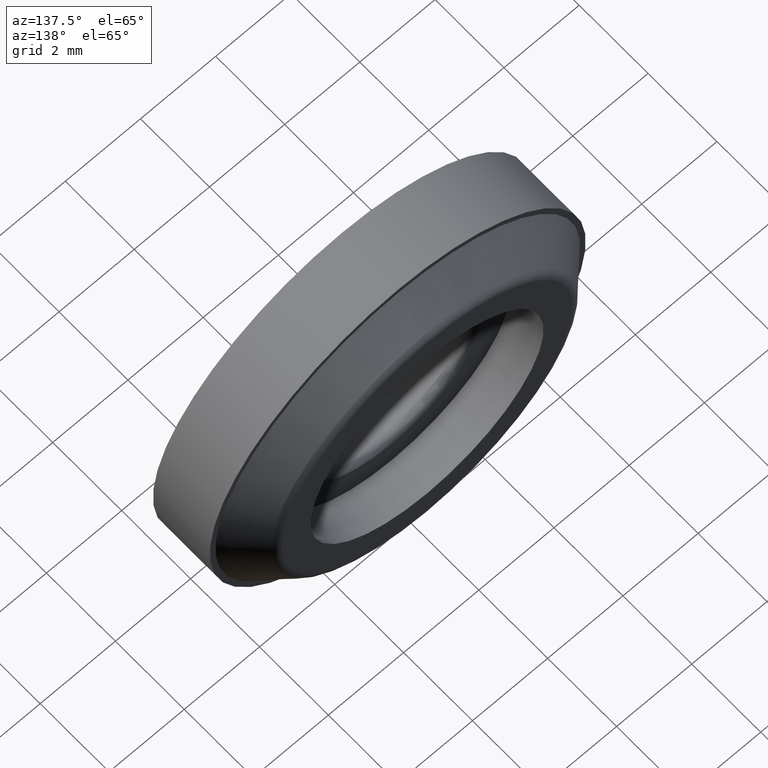
[diagram: clean part render]
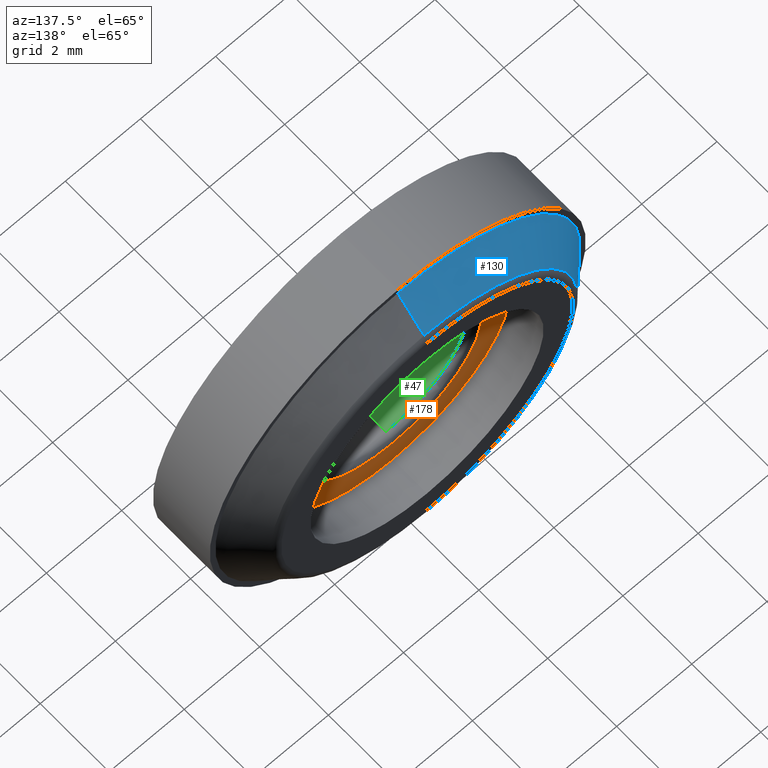
[diagram: same view with three faces highlighted in distinct colors, each labeled with its STEP entity id]
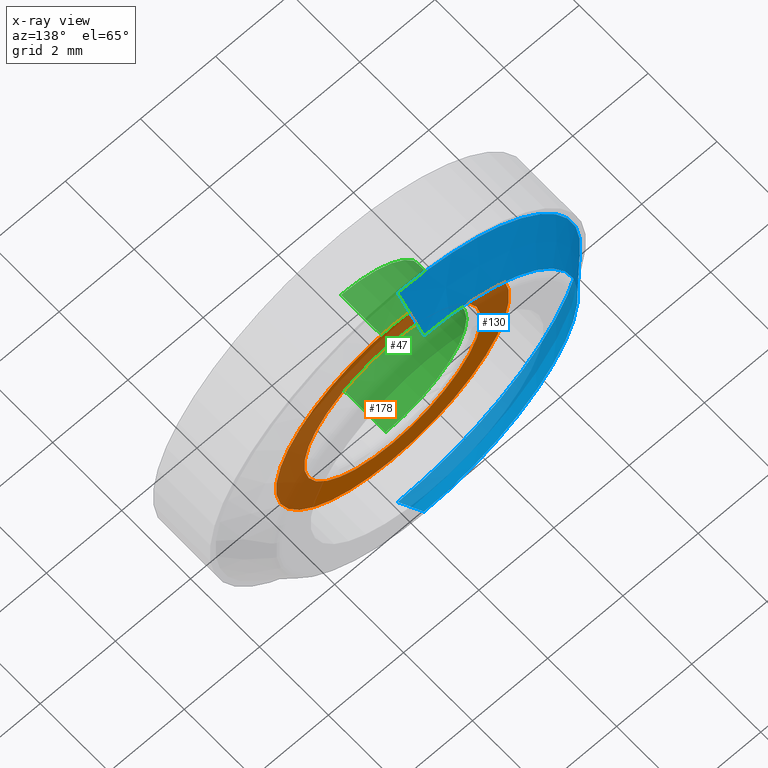
[diagram: x-ray of the same camera — body ghosted, the three highlighted faces saturated]
A machine part, auxiliary view with three faces highlighted in distinct colors.
The next image is the same camera in x-ray (body ghosted, the three faces saturated) — at least one of them is partly hidden behind the body in this view.
Their STEP definitions:

[orange] entity #178 — the highlighted planar face has unit normal (0, 1, 0).
#2 = AXIS2_PLACEMENT_3D ( 'NONE', #338, #74, #145 ) ;
#16 = DIRECTION ( 'NONE',  ( 0.0000000000000000000, 1.000000000000000000, 0.0000000000000000000 ) ) ;
#17 = CARTESIAN_POINT ( 'NONE',  ( 3.796405077356794900E-016, 1.500000000000000000, -3.100000000000000100 ) ) ;
#30 = DIRECTION ( 'NONE',  ( -0.0000000000000000000, -1.000000000000000000, -0.0000000000000000000 ) ) ;
#56 = DIRECTION ( 'NONE',  ( 0.0000000000000000000, 0.0000000000000000000, 1.000000000000000000 ) ) ;
#61 = CARTESIAN_POINT ( 'NONE',  ( 0.0000000000000000000, 1.500000000000000000, 2.350000000000000100 ) ) ;
#68 = CARTESIAN_POINT ( 'NONE',  ( 0.0000000000000000000, 1.500000000000000000, 0.0000000000000000000 ) ) ;
#74 = DIRECTION ( 'NONE',  ( 0.0000000000000000000, 1.000000000000000000, 0.0000000000000000000 ) ) ;
#75 = EDGE_CURVE ( 'NONE', #503, #482, #312, .T. ) ;
#80 = DIRECTION ( 'NONE',  ( -0.0000000000000000000, -1.000000000000000000, -0.0000000000000000000 ) ) ;
#84 = ORIENTED_EDGE ( 'NONE', *, *, #127, .T. ) ;
#112 = DIRECTION ( 'NONE',  ( 0.0000000000000000000, 0.0000000000000000000, 1.000000000000000000 ) ) ;
#127 = EDGE_CURVE ( 'NONE', #466, #129, #235, .T. ) ;
#129 = VERTEX_POINT ( 'NONE', #370 ) ;
#138 = FACE_BOUND ( 'NONE', #444, .T. ) ;
#145 = DIRECTION ( 'NONE',  ( 0.0000000000000000000, -0.0000000000000000000, 1.000000000000000000 ) ) ;
#178 = ADVANCED_FACE ( 'NONE', ( #138, #197 ), #499, .T. ) ;
#197 = FACE_OUTER_BOUND ( 'NONE', #259, .T. ) ;
#202 = AXIS2_PLACEMENT_3D ( 'NONE', #68, #255, #461 ) ;
#203 = ORIENTED_EDGE ( 'NONE', *, *, #369, .T. ) ;
#229 = DIRECTION ( 'NONE',  ( 0.0000000000000000000, 0.0000000000000000000, 1.000000000000000000 ) ) ;
#235 = CIRCLE ( 'NONE', #304, 2.350000000000000100 ) ;
#255 = DIRECTION ( 'NONE',  ( 0.0000000000000000000, 1.000000000000000000, 0.0000000000000000000 ) ) ;
#259 = EDGE_LOOP ( 'NONE', ( #418, #203 ) ) ;
#282 = AXIS2_PLACEMENT_3D ( 'NONE', #454, #80, #56 ) ;
#304 = AXIS2_PLACEMENT_3D ( 'NONE', #310, #30, #229 ) ;
#310 = CARTESIAN_POINT ( 'NONE',  ( 0.0000000000000000000, 1.500000000000000000, 0.0000000000000000000 ) ) ;
#312 = CIRCLE ( 'NONE', #202, 3.100000000000000100 ) ;
#315 = CIRCLE ( 'NONE', #282, 2.350000000000000100 ) ;
#317 = EDGE_CURVE ( 'NONE', #129, #466, #315, .T. ) ;
#338 = CARTESIAN_POINT ( 'NONE',  ( 0.0000000000000000000, 1.500000000000000000, 0.0000000000000000000 ) ) ;
#354 = ORIENTED_EDGE ( 'NONE', *, *, #317, .T. ) ;
#356 = AXIS2_PLACEMENT_3D ( 'NONE', #365, #16, #112 ) ;
#365 = CARTESIAN_POINT ( 'NONE',  ( 0.0000000000000000000, 1.500000000000000000, 0.0000000000000000000 ) ) ;
#369 = EDGE_CURVE ( 'NONE', #482, #503, #388, .T. ) ;
#370 = CARTESIAN_POINT ( 'NONE',  ( 2.877919977996279800E-016, 1.500000000000000000, -2.350000000000000100 ) ) ;
#388 = CIRCLE ( 'NONE', #356, 3.100000000000000100 ) ;
#418 = ORIENTED_EDGE ( 'NONE', *, *, #75, .T. ) ;
#444 = EDGE_LOOP ( 'NONE', ( #84, #354 ) ) ;
#454 = CARTESIAN_POINT ( 'NONE',  ( 0.0000000000000000000, 1.500000000000000000, 0.0000000000000000000 ) ) ;
#461 = DIRECTION ( 'NONE',  ( 0.0000000000000000000, 0.0000000000000000000, 1.000000000000000000 ) ) ;
#466 = VERTEX_POINT ( 'NONE', #61 ) ;
#482 = VERTEX_POINT ( 'NONE', #17 ) ;
#497 = CARTESIAN_POINT ( 'NONE',  ( 0.0000000000000000000, 1.500000000000000000, 3.100000000000000100 ) ) ;
#499 = PLANE ( 'NONE',  #2 ) ;
#503 = VERTEX_POINT ( 'NONE', #497 ) ;

[blue] entity #130 — the highlighted conical surface has half-angle 45 deg.
#8 = CIRCLE ( 'NONE', #241, 4.087867965644037800 ) ;
#35 = CARTESIAN_POINT ( 'NONE',  ( 0.0000000000000000000, 1.649999999999999500, 0.0000000000000000000 ) ) ;
#40 = EDGE_CURVE ( 'NONE', #244, #481, #400, .T. ) ;
#91 = ORIENTED_EDGE ( 'NONE', *, *, #501, .T. ) ;
#96 = EDGE_CURVE ( 'NONE', #346, #244, #8, .T. ) ;
#121 = AXIS2_PLACEMENT_3D ( 'NONE', #254, #211, #326 ) ;
#126 = VERTEX_POINT ( 'NONE', #368 ) ;
#130 = ADVANCED_FACE ( 'NONE', ( #438 ), #415, .T. ) ;
#135 = CARTESIAN_POINT ( 'NONE',  ( 0.0000000000000000000, 2.412132034355964000, 0.0000000000000000000 ) ) ;
#150 = CARTESIAN_POINT ( 'NONE',  ( 0.0000000000000000000, 1.649999999999999500, -4.850000000000000500 ) ) ;
#154 = DIRECTION ( 'NONE',  ( 0.0000000000000000000, 0.0000000000000000000, -1.000000000000000000 ) ) ;
#155 = CIRCLE ( 'NONE', #121, 4.850000000000000500 ) ;
#167 = VECTOR ( 'NONE', #348, 999.9999999999998900 ) ;
#176 = CARTESIAN_POINT ( 'NONE',  ( 5.472865697663817900E-016, 2.412132034355964000, 4.087867965644037800 ) ) ;
#211 = DIRECTION ( 'NONE',  ( -0.0000000000000000000, 1.000000000000000000, -0.0000000000000000000 ) ) ;
#231 = ORIENTED_EDGE ( 'NONE', *, *, #40, .T. ) ;
#241 = AXIS2_PLACEMENT_3D ( 'NONE', #135, #308, #474 ) ;
#243 = VECTOR ( 'NONE', #507, 999.9999999999998900 ) ;
#244 = VERTEX_POINT ( 'NONE', #487 ) ;
#254 = CARTESIAN_POINT ( 'NONE',  ( 0.0000000000000000000, 1.649999999999999500, 0.0000000000000000000 ) ) ;
#267 = EDGE_LOOP ( 'NONE', ( #410, #352, #231, #91 ) ) ;
#308 = DIRECTION ( 'NONE',  ( 0.0000000000000000000, -1.000000000000000000, 0.0000000000000000000 ) ) ;
#322 = DIRECTION ( 'NONE',  ( 0.0000000000000000000, -1.000000000000000000, 0.0000000000000000000 ) ) ;
#324 = AXIS2_PLACEMENT_3D ( 'NONE', #35, #322, #154 ) ;
#326 = DIRECTION ( 'NONE',  ( 0.0000000000000000000, 0.0000000000000000000, 1.000000000000000000 ) ) ;
#332 = CARTESIAN_POINT ( 'NONE',  ( 5.939536975864663000E-016, 1.649999999999999500, 4.850000000000000500 ) ) ;
#346 = VERTEX_POINT ( 'NONE', #176 ) ;
#348 = DIRECTION ( 'NONE',  ( 0.0000000000000000000, -0.7071067811865489100, -0.7071067811865462400 ) ) ;
#352 = ORIENTED_EDGE ( 'NONE', *, *, #96, .T. ) ;
#368 = CARTESIAN_POINT ( 'NONE',  ( 5.939536975864663000E-016, 1.649999999999999500, 4.850000000000000500 ) ) ;
#400 = LINE ( 'NONE', #150, #167 ) ;
#410 = ORIENTED_EDGE ( 'NONE', *, *, #477, .F. ) ;
#415 = CONICAL_SURFACE ( 'NONE', #324, 4.850000000000000500, 0.7853981633974465000 ) ;
#438 = FACE_OUTER_BOUND ( 'NONE', #267, .T. ) ;
#465 = LINE ( 'NONE', #332, #243 ) ;
#474 = DIRECTION ( 'NONE',  ( 0.0000000000000000000, 0.0000000000000000000, -1.000000000000000000 ) ) ;
#477 = EDGE_CURVE ( 'NONE', #346, #126, #465, .T. ) ;
#481 = VERTEX_POINT ( 'NONE', #505 ) ;
#487 = CARTESIAN_POINT ( 'NONE',  ( 0.0000000000000000000, 2.412132034355964000, -4.087867965644037800 ) ) ;
#501 = EDGE_CURVE ( 'NONE', #481, #126, #155, .T. ) ;
#505 = CARTESIAN_POINT ( 'NONE',  ( 0.0000000000000000000, 1.649999999999999500, -4.850000000000000500 ) ) ;
#507 = DIRECTION ( 'NONE',  ( 8.659560562354918100E-017, -0.7071067811865489100, 0.7071067811865462400 ) ) ;

[green] entity #47 — the highlighted cylindrical surface (partial cylindrical patch) has radius 2.15 mm, axis along (0, -1, 0).
#22 = EDGE_LOOP ( 'NONE', ( #133, #97, #31, #113 ) ) ;
#23 = CARTESIAN_POINT ( 'NONE',  ( 0.0000000000000000000, 1.300000000000000000, -2.149999999999999900 ) ) ;
#29 = CARTESIAN_POINT ( 'NONE',  ( 2.632990618166809200E-016, 1.300000000000000000, 2.149999999999999900 ) ) ;
#31 = ORIENTED_EDGE ( 'NONE', *, *, #483, .F. ) ;
#46 = AXIS2_PLACEMENT_3D ( 'NONE', #140, #327, #492 ) ;
#47 = ADVANCED_FACE ( 'NONE', ( #274 ), #204, .F. ) ;
#70 = DIRECTION ( 'NONE',  ( 0.0000000000000000000, -1.000000000000000000, 0.0000000000000000000 ) ) ;
#83 = LINE ( 'NONE', #208, #375 ) ;
#88 = AXIS2_PLACEMENT_3D ( 'NONE', #421, #139, #486 ) ;
#90 = VECTOR ( 'NONE', #70, 1000.000000000000000 ) ;
#97 = ORIENTED_EDGE ( 'NONE', *, *, #371, .T. ) ;
#113 = ORIENTED_EDGE ( 'NONE', *, *, #419, .F. ) ;
#116 = DIRECTION ( 'NONE',  ( 0.0000000000000000000, -1.000000000000000000, 0.0000000000000000000 ) ) ;
#119 = CARTESIAN_POINT ( 'NONE',  ( 0.0000000000000000000, 2.500000000000000000, 0.0000000000000000000 ) ) ;
#133 = ORIENTED_EDGE ( 'NONE', *, *, #233, .T. ) ;
#139 = DIRECTION ( 'NONE',  ( 0.0000000000000000000, 1.000000000000000000, 0.0000000000000000000 ) ) ;
#140 = CARTESIAN_POINT ( 'NONE',  ( 0.0000000000000000000, 1.300000000000000000, 0.0000000000000000000 ) ) ;
#158 = DIRECTION ( 'NONE',  ( 0.0000000000000000000, 0.0000000000000000000, -1.000000000000000000 ) ) ;
#182 = CARTESIAN_POINT ( 'NONE',  ( 2.632990618166809200E-016, 0.0000000000000000000, 2.149999999999999900 ) ) ;
#194 = CARTESIAN_POINT ( 'NONE',  ( 2.632990618166809200E-016, 2.500000000000000000, 2.149999999999999900 ) ) ;
#201 = LINE ( 'NONE', #194, #90 ) ;
#204 = CYLINDRICAL_SURFACE ( 'NONE', #224, 2.149999999999999900 ) ;
#208 = CARTESIAN_POINT ( 'NONE',  ( 0.0000000000000000000, 2.500000000000000000, -2.149999999999999900 ) ) ;
#209 = CARTESIAN_POINT ( 'NONE',  ( 0.0000000000000000000, 0.0000000000000000000, -2.149999999999999900 ) ) ;
#224 = AXIS2_PLACEMENT_3D ( 'NONE', #119, #227, #158 ) ;
#227 = DIRECTION ( 'NONE',  ( 0.0000000000000000000, -1.000000000000000000, 0.0000000000000000000 ) ) ;
#233 = EDGE_CURVE ( 'NONE', #359, #362, #456, .T. ) ;
#248 = VERTEX_POINT ( 'NONE', #209 ) ;
#274 = FACE_OUTER_BOUND ( 'NONE', #22, .T. ) ;
#327 = DIRECTION ( 'NONE',  ( 0.0000000000000000000, 1.000000000000000000, 0.0000000000000000000 ) ) ;
#359 = VERTEX_POINT ( 'NONE', #23 ) ;
#362 = VERTEX_POINT ( 'NONE', #29 ) ;
#371 = EDGE_CURVE ( 'NONE', #362, #398, #201, .T. ) ;
#375 = VECTOR ( 'NONE', #116, 1000.000000000000000 ) ;
#398 = VERTEX_POINT ( 'NONE', #182 ) ;
#419 = EDGE_CURVE ( 'NONE', #359, #248, #83, .T. ) ;
#421 = CARTESIAN_POINT ( 'NONE',  ( 0.0000000000000000000, 0.0000000000000000000, 0.0000000000000000000 ) ) ;
#456 = CIRCLE ( 'NONE', #46, 2.149999999999999900 ) ;
#458 = CIRCLE ( 'NONE', #88, 2.149999999999999900 ) ;
#483 = EDGE_CURVE ( 'NONE', #248, #398, #458, .T. ) ;
#486 = DIRECTION ( 'NONE',  ( 0.0000000000000000000, 0.0000000000000000000, 1.000000000000000000 ) ) ;
#492 = DIRECTION ( 'NONE',  ( 0.0000000000000000000, 0.0000000000000000000, 1.000000000000000000 ) ) ;